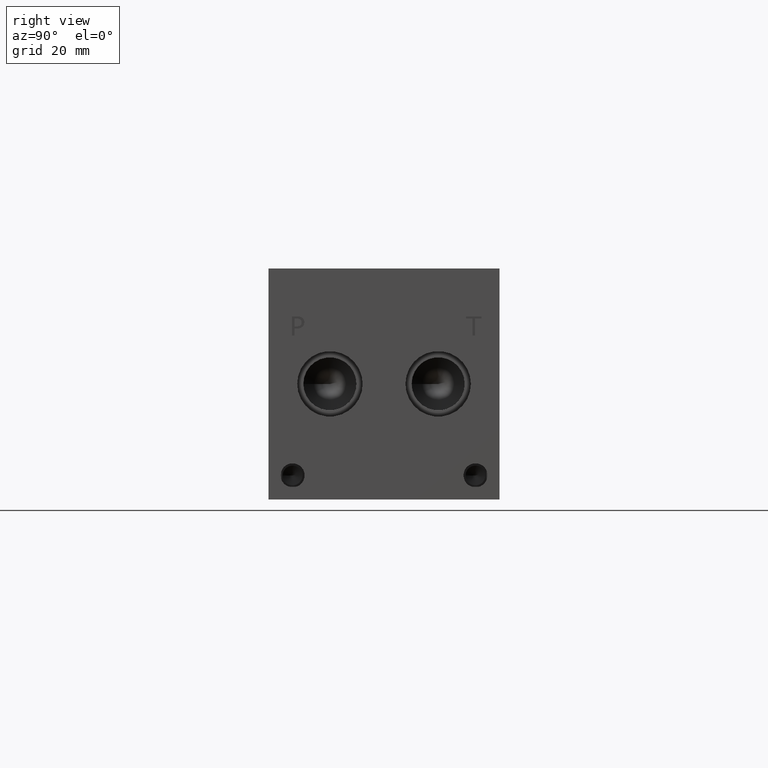
[diagram: clean part render]
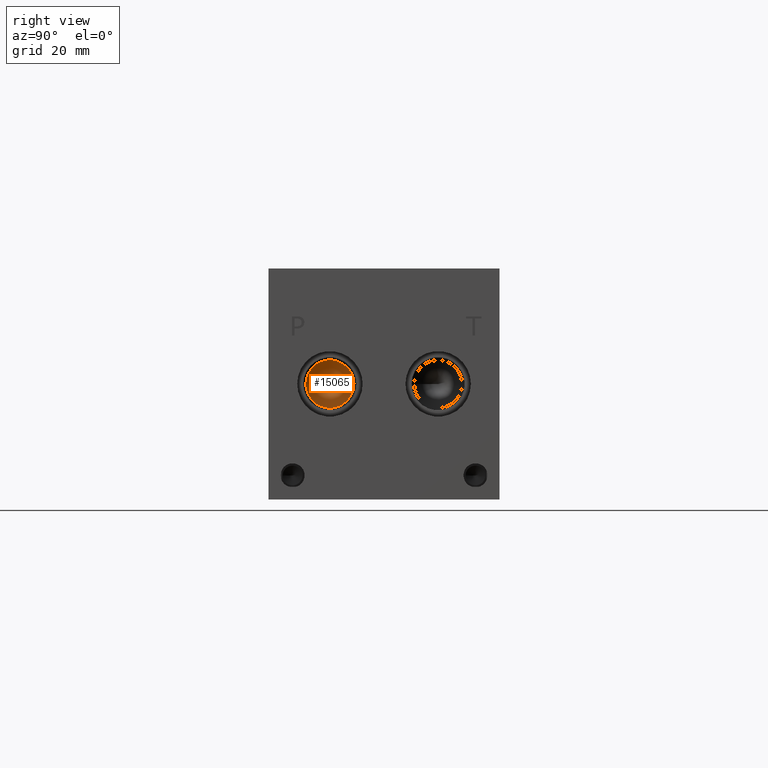
[diagram: same view with one face highlighted and labeled with its STEP entity id]
A machine part, right view. The second image highlights one B-rep face of the part: STEP entity #15065.
In plain terms, the highlighted conical surface has half-angle 60 deg.
Its self-contained STEP definition (entity closure, byte-faithful):
#158=CONICAL_SURFACE('',#15953,3.96875,1.0471975511966);
#456=CIRCLE('',#15954,7.9375);
#457=CIRCLE('',#15955,7.9375);
#1961=FACE_OUTER_BOUND('',#2841,.T.);
#2841=EDGE_LOOP('',(#13030,#13031,#13032,#13033));
#4255=LINE('',#25845,#5612);
#5612=VECTOR('',#19043,3.96875);
#7031=VERTEX_POINT('',#25841);
#7032=VERTEX_POINT('',#25842);
#7033=VERTEX_POINT('',#25844);
#9082=EDGE_CURVE('',#7031,#7032,#456,.T.);
#9083=EDGE_CURVE('',#7032,#7033,#4255,.T.);
#9084=EDGE_CURVE('',#7032,#7031,#457,.T.);
#13030=ORIENTED_EDGE('',*,*,#9082,.T.);
#13031=ORIENTED_EDGE('',*,*,#9083,.T.);
#13032=ORIENTED_EDGE('',*,*,#9083,.F.);
#13033=ORIENTED_EDGE('',*,*,#9084,.T.);
#15065=ADVANCED_FACE('',(#1961),#158,.F.);
#15953=AXIS2_PLACEMENT_3D('',#25840,#19039,#19040);
#15954=AXIS2_PLACEMENT_3D('',#25843,#19041,#19042);
#15955=AXIS2_PLACEMENT_3D('',#25846,#19044,#19045);
#19039=DIRECTION('center_axis',(1.,0.,0.));
#19040=DIRECTION('ref_axis',(0.,1.,0.));
#19041=DIRECTION('center_axis',(1.,0.,0.));
#19042=DIRECTION('ref_axis',(0.,1.,0.));
#19043=DIRECTION('',(-0.5,0.866025403784439,1.06057523872491E-16));
#19044=DIRECTION('center_axis',(1.,0.,0.));
#19045=DIRECTION('ref_axis',(0.,1.,0.));
#25840=CARTESIAN_POINT('Origin',(181.858641119154,20.2438,38.1));
#25841=CARTESIAN_POINT('',(184.15,28.1813,38.1));
#25842=CARTESIAN_POINT('',(184.15,12.3063,38.1));
#25843=CARTESIAN_POINT('Origin',(184.15,20.2438,38.1));
#25844=CARTESIAN_POINT('',(179.567282238307,20.2438,38.1));
#25845=CARTESIAN_POINT('',(181.858641119154,16.27505,38.1));
#25846=CARTESIAN_POINT('Origin',(184.15,20.2438,38.1));